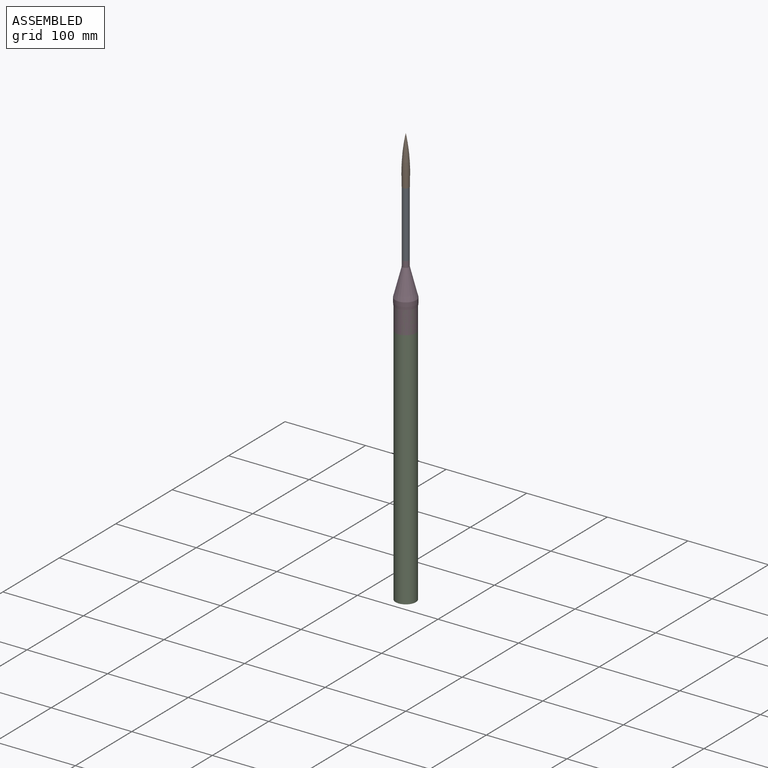
[diagram: assembled view]
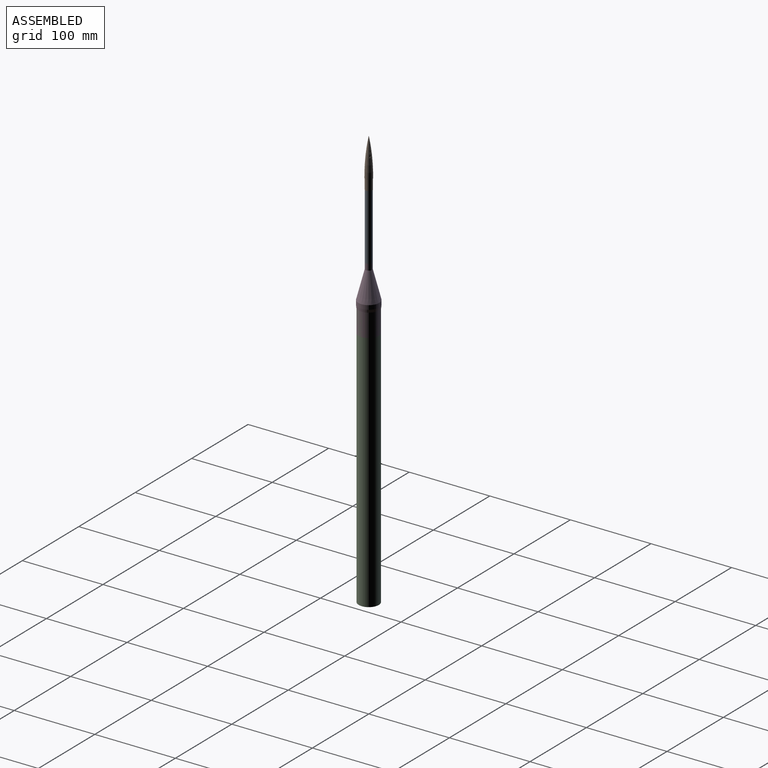
[diagram: assembled view, second angle]
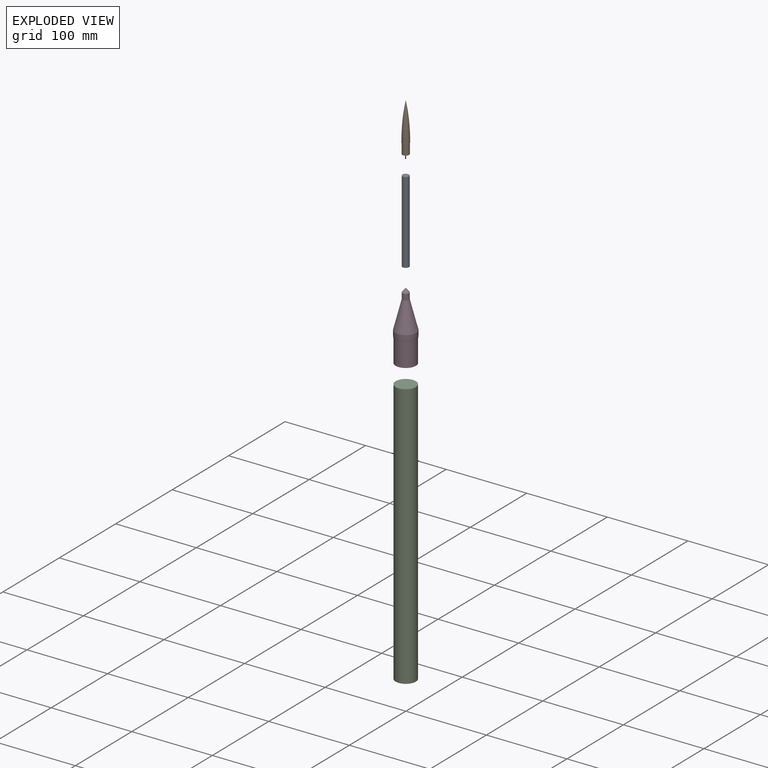
[diagram: exploded view]
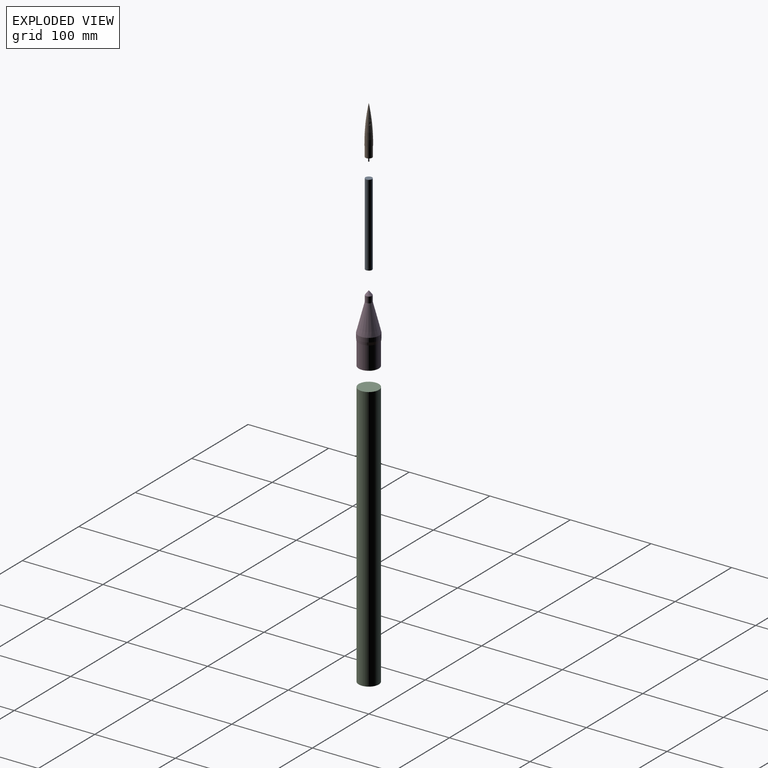
[diagram: exploded view, second angle]
ASSEMBLY  parts=4 mates=3
PART A: 3 faces, bbox 8.2x8.2x101.9 mm
  f0: plane 8.2x8.2mm, normal (0,0,-1), area 52.8mm2, adj f2
  f1: plane 8.2x8.2mm, normal (0,0,1), area 52.8mm2, adj f2
  f2: cylinder r=4.1mm len=101.85mm, axis (0,0,1), area 2623.9mm2, adj f0,f1
PART B: 4 faces, bbox 26.5x26.5x30.4 mm
  f0: plane 26.52x26.52mm, normal (0,0,-1), area 6.9mm2, adj f1,f3
  f1: cylinder r=4.17mm len=12.7mm, axis (0,0,1), area 332.4mm2, adj f0,f2
  f2: plane 8.33x8.33mm, normal (0,0,-1), area 54.5mm2, adj f1
  f3: revolved ~8.84x4.42mm, area 0mm2, adj f0
PART C: 3 faces, bbox 25x25x330.4 mm
  f0: plane 25x25mm, normal (0,0,-1), area 490.9mm2, adj f2
  f1: plane 25x25mm, normal (0,0,1), area 490.9mm2, adj f2
  f2: cylinder r=12.5mm len=330.4mm, axis (0,0,1), area 25949.6mm2, adj f0,f1
PART D: 11 faces, bbox 26x26x84.4 mm
  f0: cylinder r=12.5mm len=28.58mm, axis (0,0,1), area 2244.3mm2, adj f1,f8
  f1: plane 25.4x25.4mm, normal (0,0,-1), area 15.8mm2, adj f0,f2
  f2: cone r=13mm half-angle=5.2deg, axis (0,0,1), area 269.8mm2, adj f1,f3
  f3: cylinder r=13mm len=26.01mm, axis (0,0,1), area 425.5mm2, adj f2,f4
  f4: cone r=13mm half-angle=14.4deg, axis (0,0,-1), area 1918.3mm2, adj f3,f5
  f5: cylinder r=4.1mm len=8.2mm, axis (0,0,-1), area 196.3mm2, adj f4,f7
  f6: plane 0.2x0.2mm, normal (0,0,1), area 0mm2, adj f7
  f7: cone r=0.1mm half-angle=38.2deg, axis (0,0,-1), area 85.3mm2, adj f5,f6
  f8: plane 25x25mm, normal (0,0,-1), area 33.6mm2, adj f0,f10
  f9: plane 24.13x24.13mm, normal (0,0,-1), area 457.3mm2, adj f10
  f10: cylinder r=12.06mm len=28.58mm, axis (0,0,-1), area 2166.2mm2, adj f8,f9
PLACE A t=(0,0,373.5)mm
PLACE B t=(0,0,462.66)mm
PLACE C at identity
PLACE D t=(0,0,338.93)mm
MATE fastened D.f0 <-> C.f2  axis (0,0,-1) through (0,0,330.4)mm
MATE fastened A.f2 <-> D.f0  axis (0,0,-1) through (0,0,373.5)mm
MATE fastened B.f1 <-> A.f2  axis (0,0,-1) through (0,0,475.36)mm
